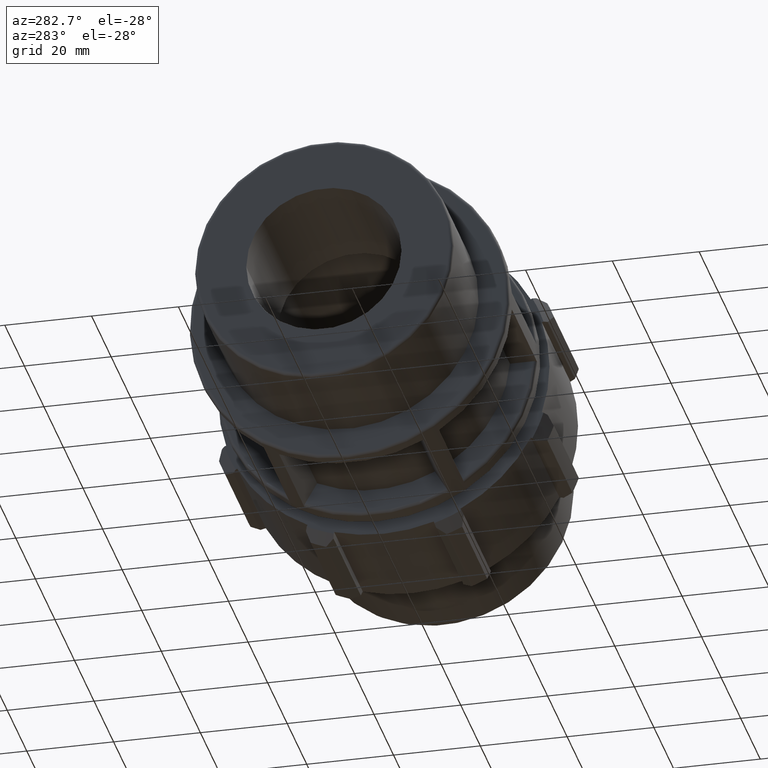
[diagram: clean part render]
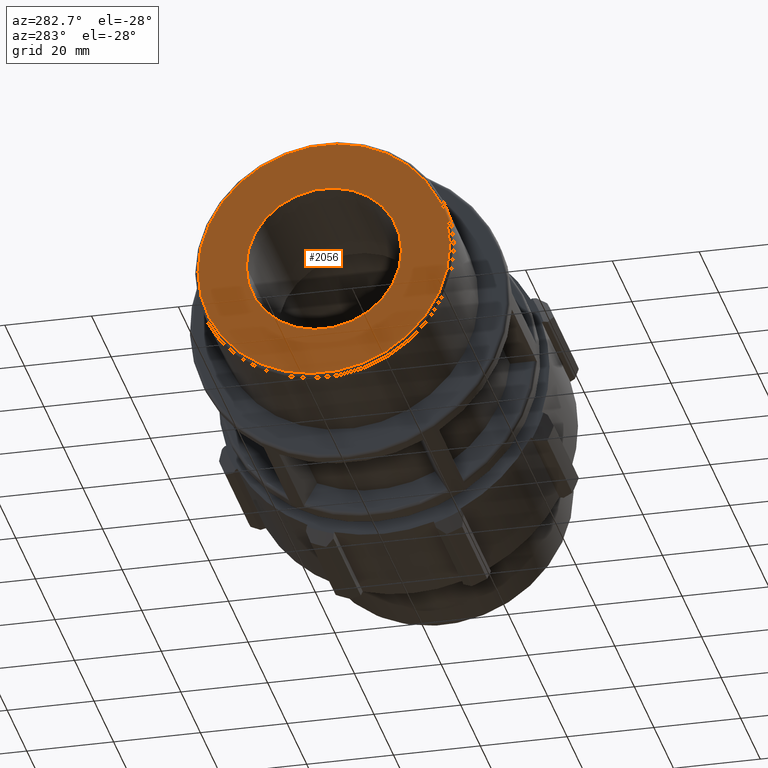
[diagram: same view with one face highlighted and labeled with its STEP entity id]
A machine part, auxiliary view. The second image highlights one B-rep face of the part: STEP entity #2056.
In plain terms, the highlighted planar face has unit normal (-1, 0, 0).
Its self-contained STEP definition (entity closure, byte-faithful):
#397=PLANE('',#2177);
#461=FACE_BOUND('',#605,.T.);
#486=FACE_OUTER_BOUND('',#604,.T.);
#604=EDGE_LOOP('',(#1336));
#605=EDGE_LOOP('',(#1337));
#744=CIRCLE('',#2175,29.007);
#746=CIRCLE('',#2178,17.8842);
#838=VERTEX_POINT('',#2955);
#840=VERTEX_POINT('',#2960);
#1040=EDGE_CURVE('',#838,#838,#744,.T.);
#1042=EDGE_CURVE('',#840,#840,#746,.T.);
#1336=ORIENTED_EDGE('',*,*,#1040,.F.);
#1337=ORIENTED_EDGE('',*,*,#1042,.T.);
#2056=ADVANCED_FACE('',(#486,#461),#397,.T.);
#2175=AXIS2_PLACEMENT_3D('',#2956,#2389,#2390);
#2177=AXIS2_PLACEMENT_3D('',#2959,#2393,#2394);
#2178=AXIS2_PLACEMENT_3D('',#2961,#2395,#2396);
#2389=DIRECTION('center_axis',(1.,0.,0.));
#2390=DIRECTION('ref_axis',(0.,-1.,1.83697019872103E-16));
#2393=DIRECTION('center_axis',(-1.,0.,0.));
#2394=DIRECTION('ref_axis',(0.,0.,1.));
#2395=DIRECTION('center_axis',(1.,0.,0.));
#2396=DIRECTION('ref_axis',(0.,0.,-1.));
#2955=CARTESIAN_POINT('',(0.,29.007,-1.77616648514336E-15));
#2956=CARTESIAN_POINT('Origin',(0.,0.,0.));
#2959=CARTESIAN_POINT('Origin',(0.,29.807,0.));
#2960=CARTESIAN_POINT('',(0.,17.8842,0.));
#2961=CARTESIAN_POINT('Origin',(0.,0.,0.));